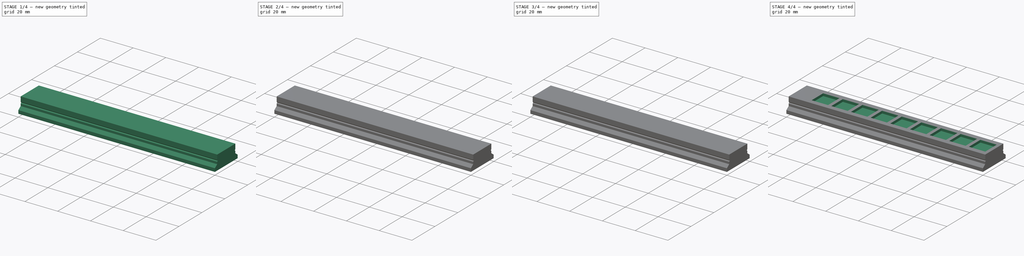
[diagram: build sequence overview — one tinted view per stage of 4, left to right]
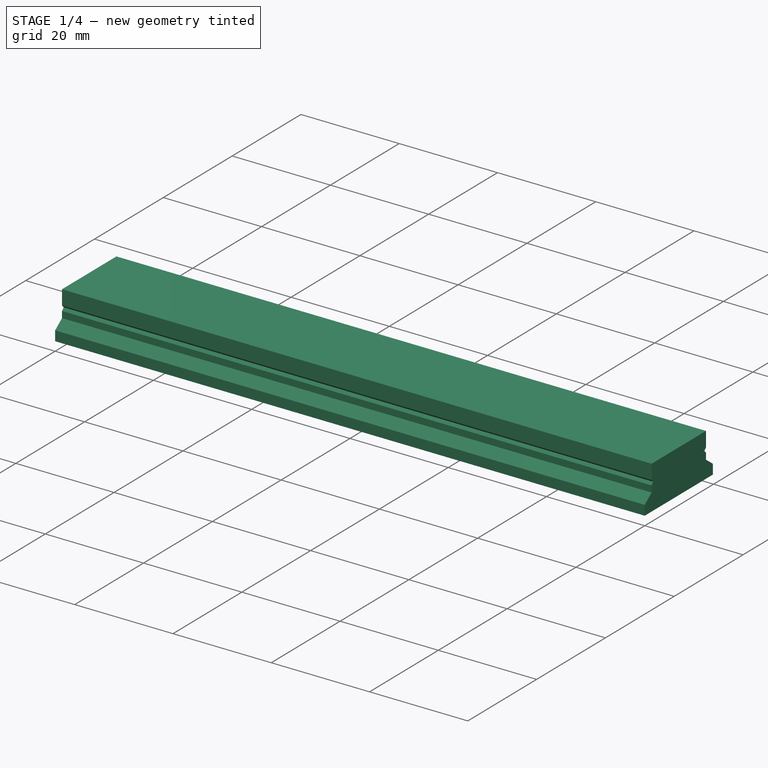
[diagram: stage 1 of 4 — iso view after this stage's code; geometry added in this stage tinted green]
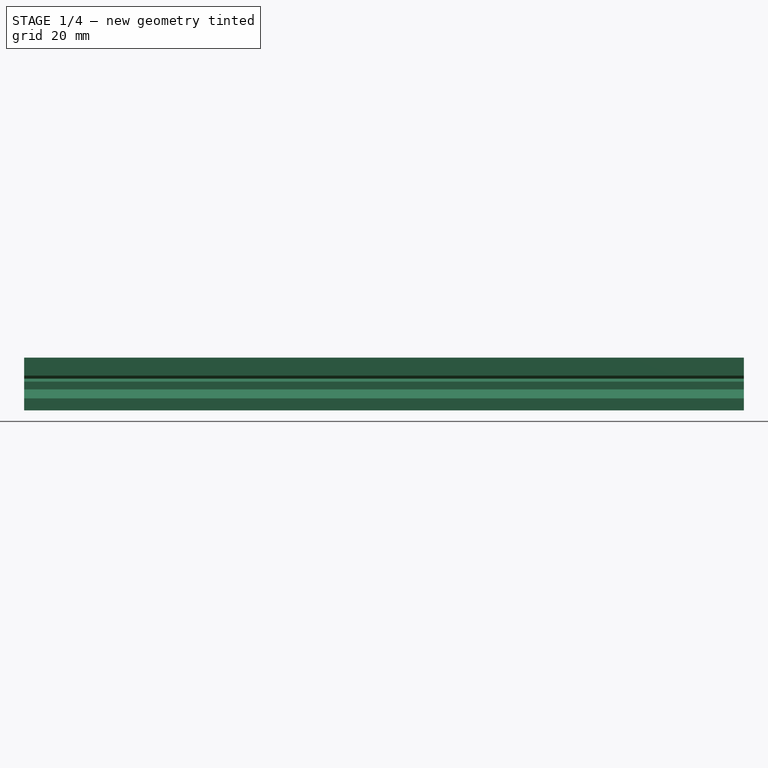
[diagram: stage 1 of 4 — front view after this stage's code; geometry added in this stage tinted green]
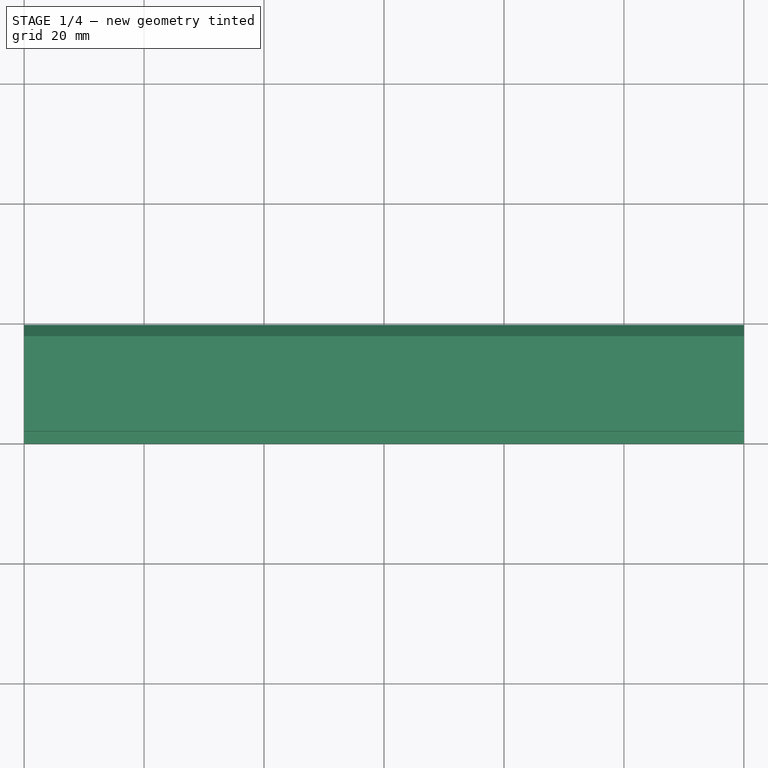
[diagram: stage 1 of 4 — top view after this stage's code; geometry added in this stage tinted green]
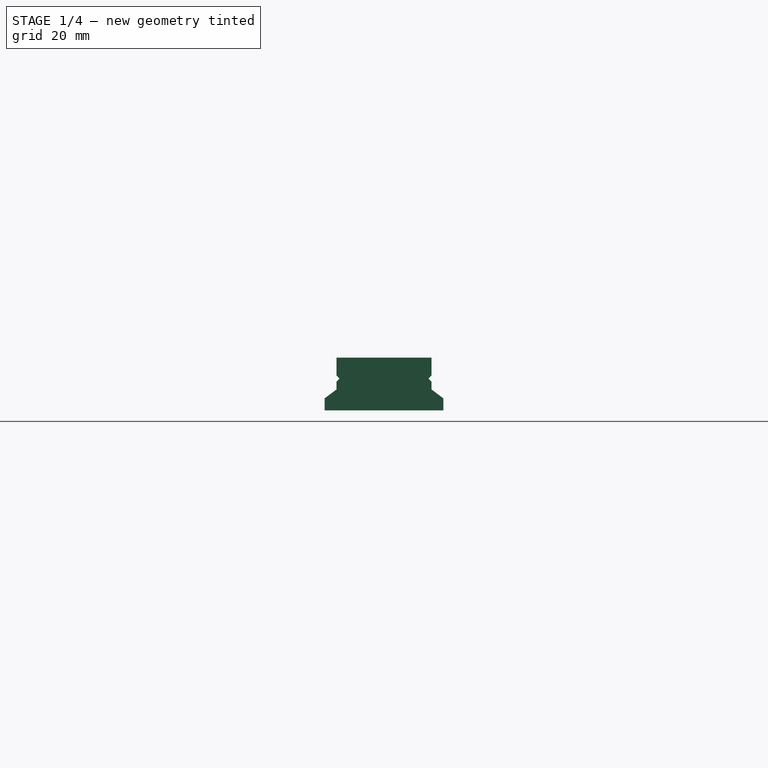
[diagram: stage 1 of 4 — right view after this stage's code; geometry added in this stage tinted green]
FCSTD DOCUMENT  (FreeCAD 1.0R39109 (Git))
Label: Menlu_13x13
License: All rights reserved
LicenseURL: https://en.wikipedia.org/wiki/All_rights_reserved
objects: Sketcher::SketchObject×5, PartDesign::Pocket×4, PartDesign::LinearPattern×3, PartDesign::Pad×1, PartDesign::Mirrored×1, PartDesign::Body×1
note: 34 computed .brp shape members not serialized (recipe doc carries the construction recipe); baked Part::Feature solids carry a one-line shape summary decoded from their .brp

FEATURE [Sketcher::SketchObject] Sketch
  ArcFitTolerance = 1e-06
  AttachmentSupport = -> [YZ_Plane]
  FullyConstrained = true
  MakeInternals = false
  MapMode = 5
  Placement = pos=(0,0,0) rot=(0.57735,0.57735,0.57735;2.0944rad)
  sketch-geometry (9):
    g0: LineSegment StartX=0 StartY=0 StartZ=0 EndX=0 EndY=2 EndZ=0
    g1: LineSegment StartX=0 StartY=2 StartZ=0 EndX=1.99057 EndY=3.5 EndZ=0
    g2: LineSegment StartX=1.99057 StartY=3.5 StartZ=0 EndX=1.99057 EndY=4.8 EndZ=0
    g3: LineSegment StartX=1.99057 StartY=4.8 StartZ=0 EndX=2.49057 EndY=5.3 EndZ=0
    g4: LineSegment StartX=2.49057 StartY=5.3 StartZ=0 EndX=1.99057 EndY=5.8 EndZ=0
    g5: LineSegment StartX=1.99057 StartY=5.8 StartZ=0 EndX=1.99057 EndY=8.8 EndZ=0
    g6: LineSegment StartX=1.99057 StartY=8.8 StartZ=0 EndX=9.9 EndY=8.8 EndZ=0
    g7: LineSegment StartX=0 StartY=0 StartZ=0 EndX=9.9 EndY=0 EndZ=0
    g8: LineSegment StartX=9.9 StartY=8.8 StartZ=0 EndX=9.9 EndY=0 EndZ=0
  constraints (25):
    c: Coincident(g-1,g0)
    c: PointOnObject(g0,g-2)
    c: Coincident(g0,g1)
    c: Coincident(g1,g2)
    c: Vertical(g2)
    c: Coincident(g2,g3)
    c: Coincident(g3,g4)
    c: Coincident(g4,g5)
    c: Coincident(g5,g6)
    c: Horizontal(g6)
    c: Coincident(g0,g7)
    c: PointOnObject(g7,g-1)
    c: Vertical(g8)
    c: Coincident(g8,g7)
    c: Distance(g0,g0) = 2
    c: DistanceY(g0,g1) = 1.5
    c: DistanceY(g2,g2) = 1.3
    c: DistanceY(g2,g3) = 0.5
    c: DistanceX(g2,g3) = 0.5
    c: DistanceY(g3,g4) = 0.5
    c: Tangent(g5,g2)
    c: DistanceY(g5,g5) = 3
    c: Angle(g1,g2) = 0.925025
    c: DistanceX(g7,g7) = 9.9
    c: Coincident(g8,g6)
FEATURE [PartDesign::Pad] Pad
  Direction = (1,0,0)
  Length = 120
  Length2 = 10
  Placement = pos=(0,0,0) rot=(1,1,1;2.0944rad)
  Profile = -> Sketch
  ReferenceAxis = -> Sketch [N_Axis]
  Refine = true
  Suppressed = false
  Type = 0
FEATURE [PartDesign::Mirrored] Mirrored
  BaseFeature = -> Pad
  MirrorPlane = -> Pad [Face8]
  Placement = pos=(0,0,0) rot=(1,1,1;2.0944rad)
  Refine = true
  Suppressed = false
  TransformMode = 1
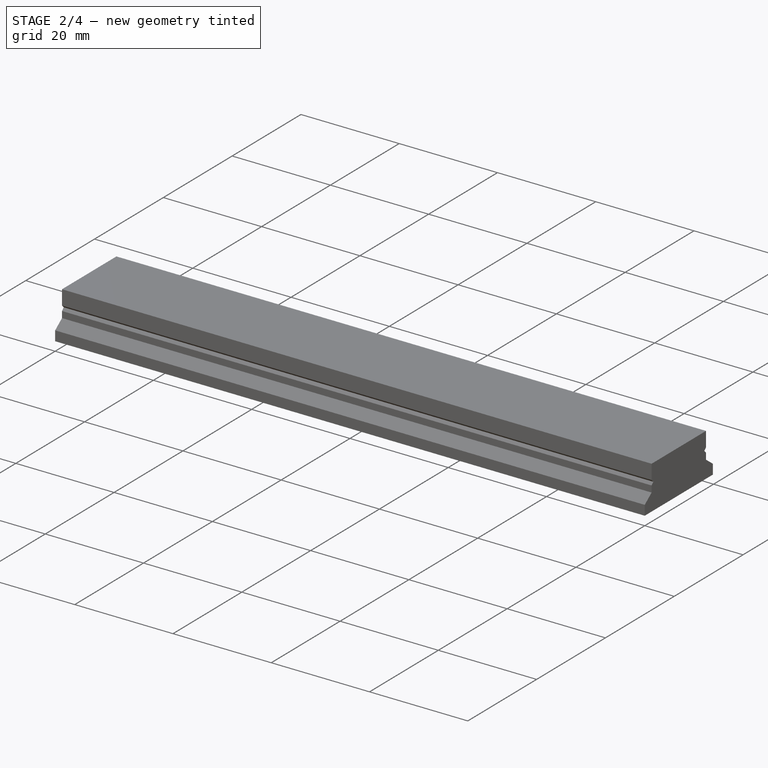
[diagram: stage 2 of 4 — iso view after this stage's code; geometry added in this stage tinted green]
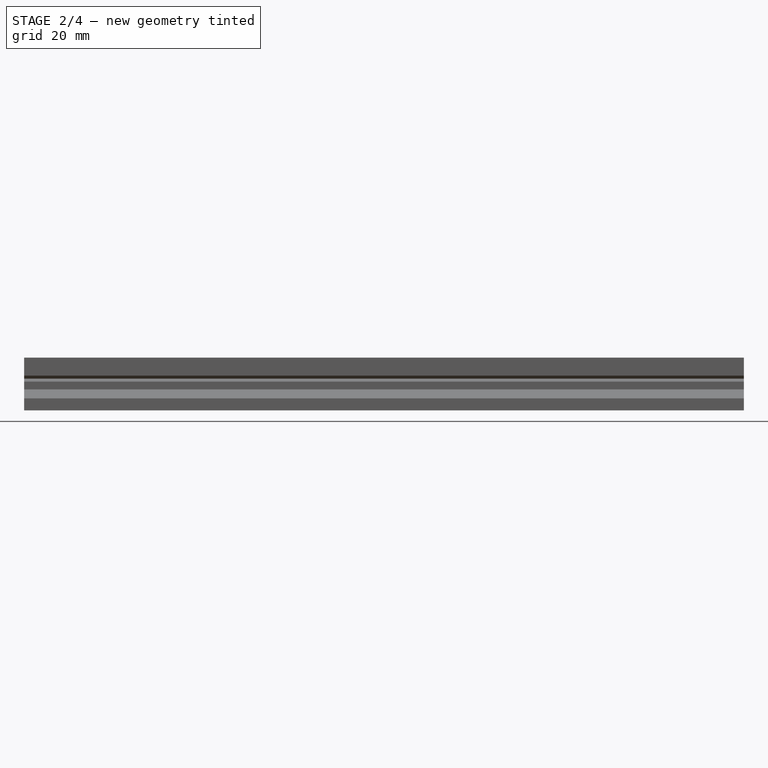
[diagram: stage 2 of 4 — front view after this stage's code; geometry added in this stage tinted green]
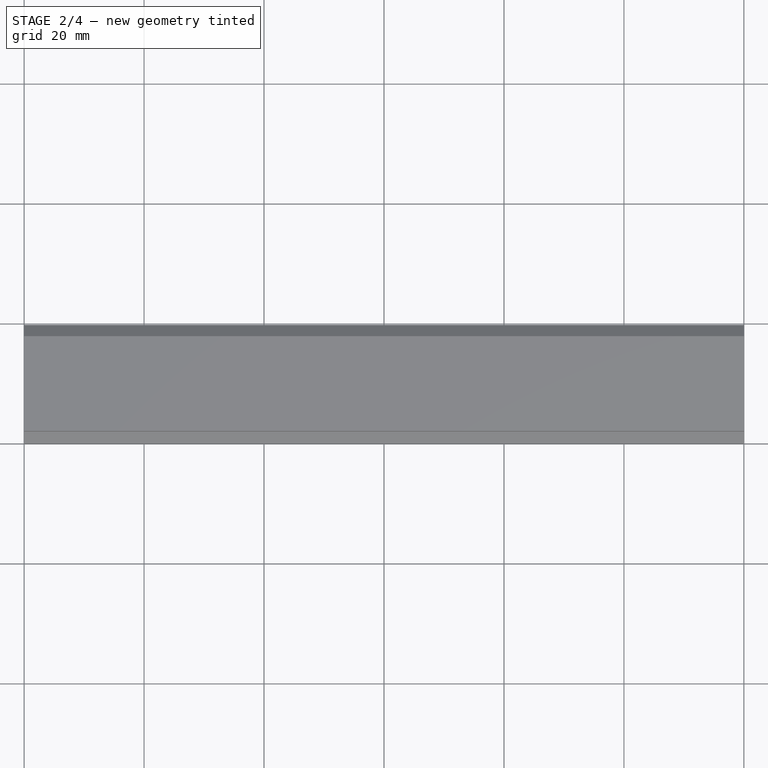
[diagram: stage 2 of 4 — top view after this stage's code; geometry added in this stage tinted green]
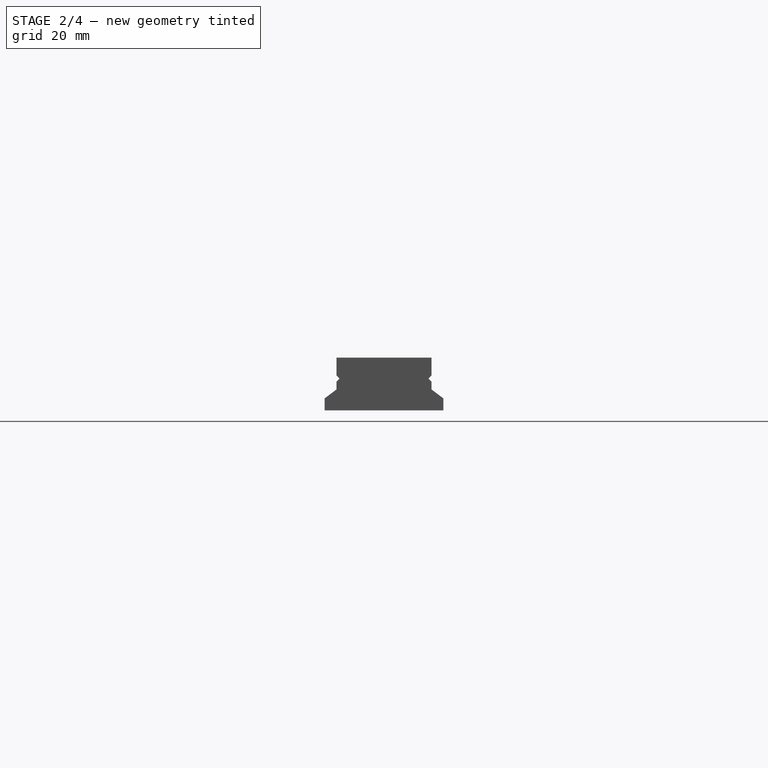
[diagram: stage 2 of 4 — right view after this stage's code; geometry added in this stage tinted green]
FEATURE [Sketcher::SketchObject] Sketch001
  ArcFitTolerance = 1e-06
  AttachmentSupport = -> [Mirrored]
  ExternalGeometry = -> [Mirrored]
  FullyConstrained = true
  MakeInternals = false
  MapMode = 5
  Placement = pos=(0,0,0) rot=(0.707107,0.707107,0;3.14159rad)
  sketch-geometry (32):
    g0: LineSegment StartX=1 StartY=24.25 StartZ=0 EndX=1 EndY=11.75 EndZ=0
    g1: LineSegment StartX=1 StartY=11.75 StartZ=0 EndX=3.8 EndY=11.75 EndZ=0
    g2: LineSegment StartX=3.8 StartY=11.75 StartZ=0 EndX=3.8 EndY=24.25 EndZ=0
    g3: LineSegment StartX=3.8 StartY=24.25 StartZ=0 EndX=1 EndY=24.25 EndZ=0
    g4: LineSegment StartX=6 StartY=24.25 StartZ=0 EndX=6 EndY=11.75 EndZ=0
    g5: LineSegment StartX=6 StartY=11.75 StartZ=0 EndX=8.8 EndY=11.75 EndZ=0
    g6: LineSegment StartX=8.8 StartY=11.75 StartZ=0 EndX=8.8 EndY=24.25 EndZ=0
    g7: LineSegment StartX=8.8 StartY=24.25 StartZ=0 EndX=6 EndY=24.25 EndZ=0
    g8: LineSegment StartX=11 StartY=11.75 StartZ=0 EndX=13.8 EndY=11.75 EndZ=0
    g9: LineSegment StartX=13.8 StartY=11.75 StartZ=0 EndX=13.8 EndY=24.25 EndZ=0
    g10: LineSegment StartX=13.8 StartY=24.25 StartZ=0 EndX=11 EndY=24.25 EndZ=0
    g11: LineSegment StartX=11 StartY=24.25 StartZ=0 EndX=11 EndY=11.75 EndZ=0
    g12: LineSegment StartX=1 StartY=106.25 StartZ=0 EndX=1 EndY=93.75 EndZ=0
    g13: LineSegment StartX=1 StartY=93.75 StartZ=0 EndX=3.75 EndY=93.75 EndZ=0
    g14: LineSegment StartX=3.75 StartY=93.75 StartZ=0 EndX=3.75 EndY=106.25 EndZ=0
    g15: LineSegment StartX=3.75 StartY=106.25 StartZ=0 EndX=1 EndY=106.25 EndZ=0
    g16: LineSegment StartX=6 StartY=106.25 StartZ=0 EndX=6 EndY=93.75 EndZ=0
    g17: LineSegment StartX=6 StartY=93.75 StartZ=0 EndX=8.8 EndY=93.75 EndZ=0
    g18: LineSegment StartX=8.8 StartY=93.75 StartZ=0 EndX=8.8 EndY=106.25 EndZ=0
    g19: LineSegment StartX=8.8 StartY=106.25 StartZ=0 EndX=6 EndY=106.25 EndZ=0
    g20: LineSegment StartX=11 StartY=93.75 StartZ=0 EndX=13.8 EndY=93.75 EndZ=0
    g21: LineSegment StartX=13.8 StartY=93.75 StartZ=0 EndX=13.8 EndY=106.25 EndZ=0
    g22: LineSegment StartX=13.8 StartY=106.25 StartZ=0 EndX=11 EndY=106.25 EndZ=0
    g23: LineSegment StartX=11 StartY=106.25 StartZ=0 EndX=11 EndY=93.75 EndZ=0
    g24: LineSegment StartX=16 StartY=11.75 StartZ=0 EndX=18.8 EndY=11.75 EndZ=0
    g25: LineSegment StartX=18.8 StartY=11.75 StartZ=0 EndX=18.8 EndY=24.25 EndZ=0
    g26: LineSegment StartX=18.8 StartY=24.25 StartZ=0 EndX=16 EndY=24.25 EndZ=0
    g27: LineSegment StartX=16 StartY=24.25 StartZ=0 EndX=16 EndY=11.75 EndZ=0
    g28: LineSegment StartX=16 StartY=93.75 StartZ=0 EndX=18.8 EndY=93.75 EndZ=0
    g29: LineSegment StartX=18.8 StartY=93.75 StartZ=0 EndX=18.8 EndY=106.25 EndZ=0
    g30: LineSegment StartX=18.8 StartY=106.25 StartZ=0 EndX=16 EndY=106.25 EndZ=0
    g31: LineSegment StartX=16 StartY=106.25 StartZ=0 EndX=16 EndY=93.75 EndZ=0
  constraints (81):
    c: Coincident(g0,g1)
    c: Coincident(g1,g2)
    c: Coincident(g2,g3)
    c: Coincident(g3,g0)
    c: Vertical(g0)
    c: Vertical(g2)
    c: Horizontal(g1)
    c: Horizontal(g3)
    c: Distance(g3,g3) = 2.8
    c: Distance(g0,g0) = 12.5
    c: Distance(g-1,g1) = 11.75
    c: Distance(g-2,g0) = 1
    c: Coincident(g4,g5)
    c: Coincident(g5,g6)
    c: Coincident(g6,g7)
    c: Coincident(g7,g4)
    c: Vertical(g4)
    c: Vertical(g6)
    c: Tangent(g7,g3)
    c: Tangent(g5,g1)
    c: Distance(g7,g7) = 2.8
    c: Distance(g4,g2) = 2.2
    c: Coincident(g8,g9)
    c: Coincident(g9,g10)
    c: Coincident(g10,g11)
    c: Coincident(g11,g8)
    c: Vertical(g9)
    c: Vertical(g11)
    c: Tangent(g10,g7)
    c: Tangent(g8,g5)
    c: DistanceX(g10,g10) = 2.8
    c: Distance(g11,g6) = 2.2
    c: Coincident(g12,g13)
    c: Coincident(g13,g14)
    c: Coincident(g14,g15)
    c: Coincident(g15,g12)
    c: Vertical(g14)
    c: Horizontal(g13)
    c: Horizontal(g15)
    c: Distance(g15,g15) = 2.75
    c: Distance(g12,g12) = 12.5
    c: Coincident(g16,g17)
    c: Coincident(g17,g18)
    c: Coincident(g18,g19)
    c: Coincident(g19,g16)
    c: Vertical(g16)
    c: Vertical(g18)
    c: Tangent(g19,g15)
    c: Tangent(g17,g13)
    c: Distance(g19,g19) = 2.8
    c: Distance(g16,g14) = 2.25
    c: Coincident(g20,g21)
    c: Coincident(g21,g22)
    c: Coincident(g22,g23)
    c: Coincident(g23,g20)
    c: Vertical(g21)
    c: Vertical(g23)
    c: Tangent(g22,g19)
    c: Tangent(g20,g17)
    c: DistanceX(g22,g22) = 2.8
    c: Distance(g23,g18) = 2.2
    c: Coincident(g24,g25)
    c: Coincident(g25,g26)
    c: Coincident(g26,g27)
    c: Coincident(g27,g24)
    c: Vertical(g25)
    c: Vertical(g27)
    c: Tangent(g24,g8)
    c: Tangent(g26,g10)
    c: DistanceX(g26,g26) = 2.8
    c: Distance(g9,g27) = 2.2
    c: Tangent(g12,g0)
    c: Distance(g13,g3) = 69.5
    c: Coincident(g28,g29)
    c: Coincident(g29,g30)
    c: Coincident(g30,g31)
    c: Coincident(g31,g28)
    c: Tangent(g28,g20)
    c: Tangent(g30,g22)
    c: Tangent(g31,g27)
    c: Tangent(g29,g25)
FEATURE [PartDesign::Pocket] Pocket
  BaseFeature = -> Mirrored
  Direction = (0,0,1)
  Length = 1.3
  Length2 = 5
  Placement = pos=(0,0,0) rot=(1,1,1;2.0944rad)
  Profile = -> Sketch001
  ReferenceAxis = -> Sketch001 [N_Axis]
  Refine = true
  Suppressed = false
  Type = 0
FEATURE [Sketcher::SketchObject] Sketch002
  ArcFitTolerance = 1e-06
  AttachmentSupport = -> [Pocket]
  ExternalGeometry = -> [Pocket]
  FullyConstrained = true
  MakeInternals = false
  MapMode = 5
  Placement = pos=(-3.5e-15,0,0) rot=(0.57735,0.57735,-0.57735;4.18879rad)
  sketch-geometry (8):
    g0: LineSegment StartX=18.2 StartY=1.21e-14 StartZ=0 EndX=18.9 EndY=-1 EndZ=0
    g1: LineSegment StartX=18.9 StartY=-1 StartZ=0 EndX=18.6 EndY=-1.3 EndZ=0
    g2: LineSegment StartX=18.6 StartY=-1.3 StartZ=0 EndX=16.2 EndY=-1.3 EndZ=0
    g3: LineSegment StartX=16.2 StartY=-1.3 StartZ=0 EndX=15.9 EndY=-1 EndZ=0
    g4: LineSegment StartX=15.9 StartY=-1 StartZ=0 EndX=16.6 EndY=1.11e-14 EndZ=0
    g5: LineSegment StartX=16.6 StartY=1.11e-14 StartZ=0 EndX=18.2 EndY=1.21e-14 EndZ=0
    g6: GeomPoint X=17.4 Y=-1.3 Z=0
    g7: GeomPoint X=17.4 Y=1.16e-14 Z=0
  constraints (19):
    c: Coincident(g0,g1)
    c: Coincident(g1,g2)
    c: Horizontal(g2)
    c: Coincident(g2,g3)
    c: Coincident(g3,g4)
    c: Coincident(g4,g5)
    c: Coincident(g5,g0)
    c: DistanceX(g5,g5) = 1.6
    c: Distance(g5,g2) = 1.3
    c: DistanceX(g3,g4) = 0.7
    c: DistanceY(g3,g4) = 1
    c: DistanceX(g2,g2) = 2.4
    c: Symmetric(g2,g2,g6)
    c: Symmetric(g5,g5,g7)
    c: Vertical(g6,g7)
    c: Horizontal(g0,g3)
    c: DistanceX(g0,g0) = 0.7
    c: Tangent(g5,g-4)
    c: Distance(g7,g-3) = 2.4
FEATURE [PartDesign::Pocket] Pocket001
  BaseFeature = -> Pocket
  Direction = (1,0,0)
  Length = 5
  Length2 = 5
  Placement = pos=(0,0,0) rot=(1,1,1;2.0944rad)
  Profile = -> Sketch002
  ReferenceAxis = -> Sketch002 [N_Axis]
  Refine = true
  Suppressed = false
  Type = 2
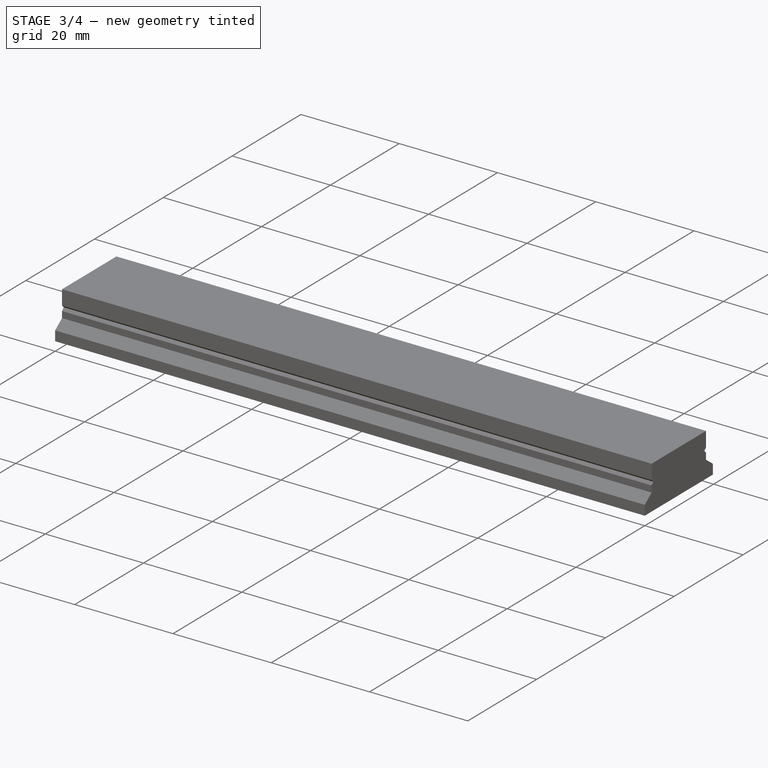
[diagram: stage 3 of 4 — iso view after this stage's code; geometry added in this stage tinted green]
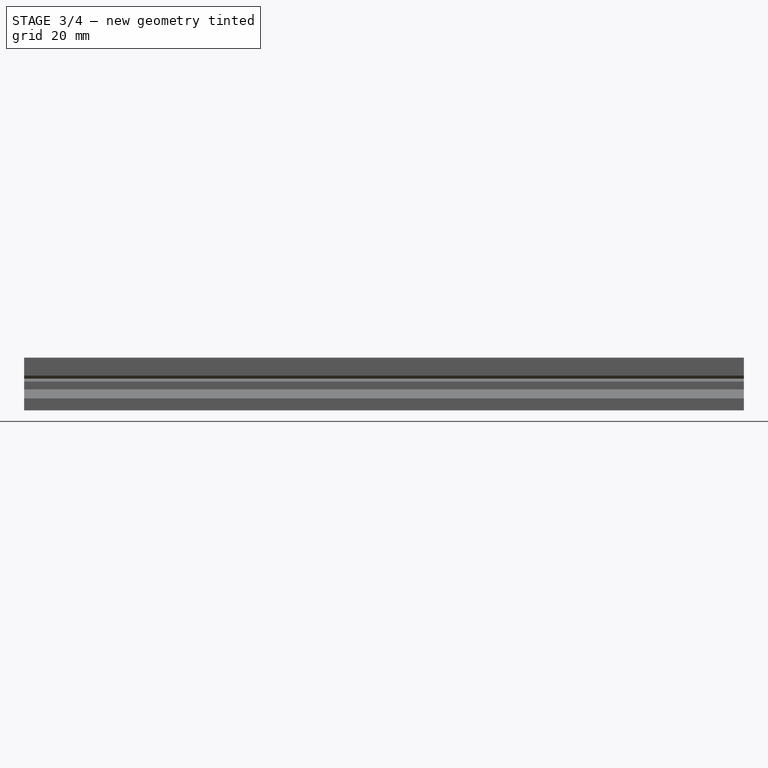
[diagram: stage 3 of 4 — front view after this stage's code; geometry added in this stage tinted green]
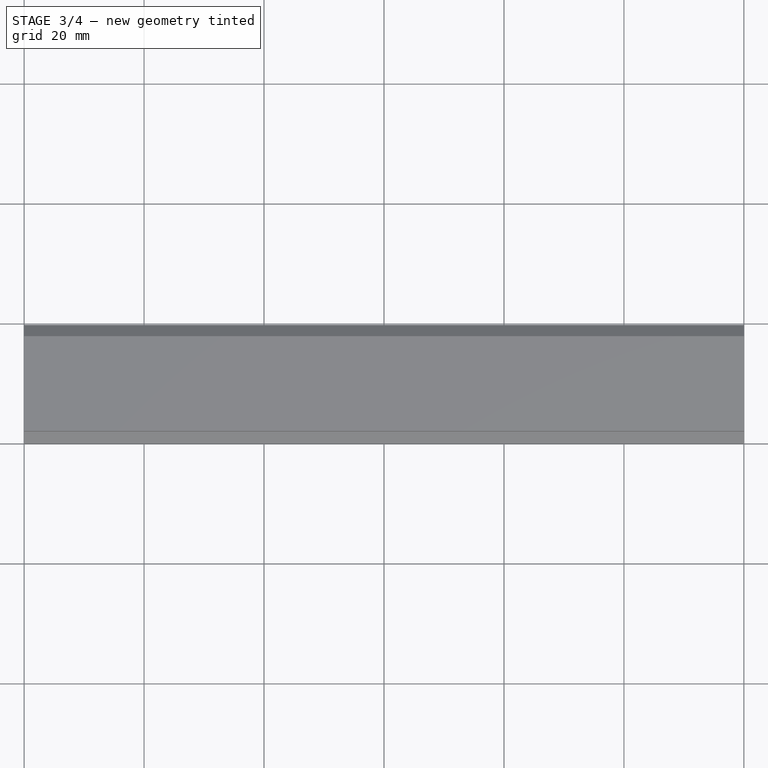
[diagram: stage 3 of 4 — top view after this stage's code; geometry added in this stage tinted green]
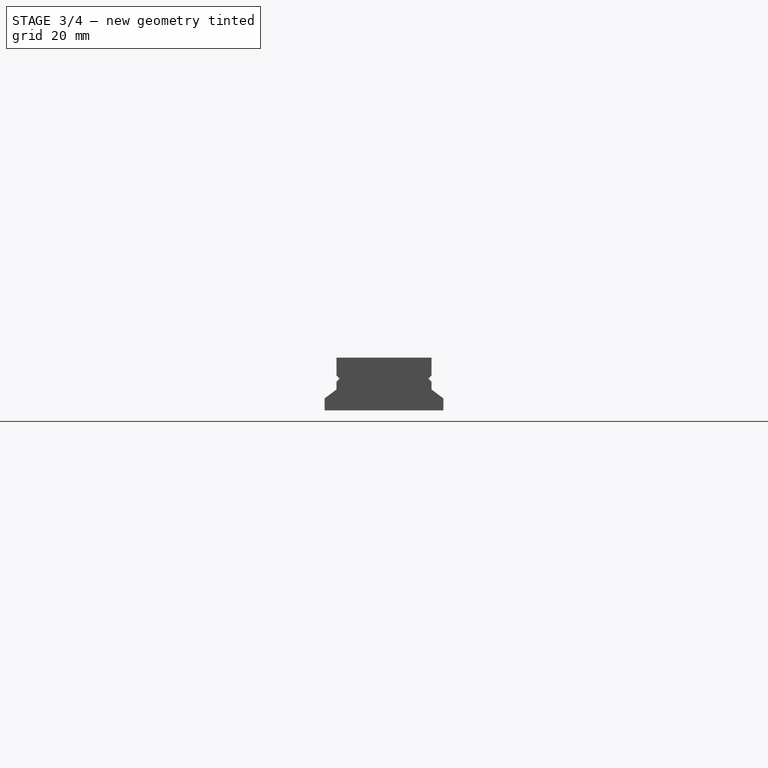
[diagram: stage 3 of 4 — right view after this stage's code; geometry added in this stage tinted green]
FEATURE [Sketcher::SketchObject] Sketch010
  ArcFitTolerance = 1e-06
  AttachmentSupport = -> [Pocket001]
  ExternalGeometry = -> [Sketch002]
  FullyConstrained = true
  MakeInternals = false
  MapMode = 5
  Placement = pos=(93.75,-5.174e-13,4.16e-14) rot=(0.57735,0.57735,0.57735;2.0944rad)
  sketch-geometry (6):
    g0: LineSegment StartX=15.9 StartY=1 StartZ=0 EndX=16.6 EndY=0 EndZ=0
    g1: LineSegment StartX=18.2 StartY=0 StartZ=0 EndX=18.9 EndY=1 EndZ=0
    g2: LineSegment StartX=18.6 StartY=1.3 StartZ=0 EndX=16.2 EndY=1.3 EndZ=0
    g3: LineSegment StartX=15.9 StartY=1 StartZ=0 EndX=16.2 EndY=1.3 EndZ=0
    g4: LineSegment StartX=18.6 StartY=1.3 StartZ=0 EndX=18.9 EndY=1 EndZ=0
    g5: LineSegment StartX=18.2 StartY=0 StartZ=0 EndX=16.6 EndY=0 EndZ=0
  constraints (12):
    c: Coincident(g0,g-8)
    c: Coincident(g0,g-4)
    c: Coincident(g1,g-5)
    c: Coincident(g1,g-6)
    c: Coincident(g2,g-7)
    c: Coincident(g2,g-8)
    c: Coincident(g3,g0)
    c: Coincident(g3,g-8)
    c: Coincident(g4,g2)
    c: Coincident(g4,g1)
    c: Coincident(g5,g-5)
    c: Coincident(g5,g-4)
FEATURE [PartDesign::Pocket] Pocket004
  BaseFeature = -> Pocket001
  Direction = (-1,5.4e-15,1e-16)
  Length = 14
  Length2 = 5
  Placement = pos=(0,0,0) rot=(1,1,1;2.0944rad)
  Profile = -> Sketch010
  ReferenceAxis = -> Sketch010 [N_Axis]
  Refine = true
  Suppressed = false
  Type = 0
FEATURE [PartDesign::LinearPattern] LinearPattern001
  BaseFeature = -> Pocket004
  Direction = -> Sketch010 [H_Axis]
  Length = 15
  Mode = 0
  Occurrences = 4
  Offset = 5
  Originals = -> [Pocket004]
  Placement = pos=(0,0,0) rot=(1,1,1;2.0944rad)
  Refine = true
  Reversed = true
  Suppressed = false
  TransformMode = 0
FEATURE [PartDesign::LinearPattern] LinearPattern
  BaseFeature = -> LinearPattern001
  Direction = -> Y_Axis
  Length = 15
  Mode = 0
  Occurrences = 4
  Offset = 5
  Originals = -> [Pocket001]
  Placement = pos=(0,0,0) rot=(1,1,1;2.0944rad)
  Refine = true
  Reversed = true
  Suppressed = false
  TransformMode = 0
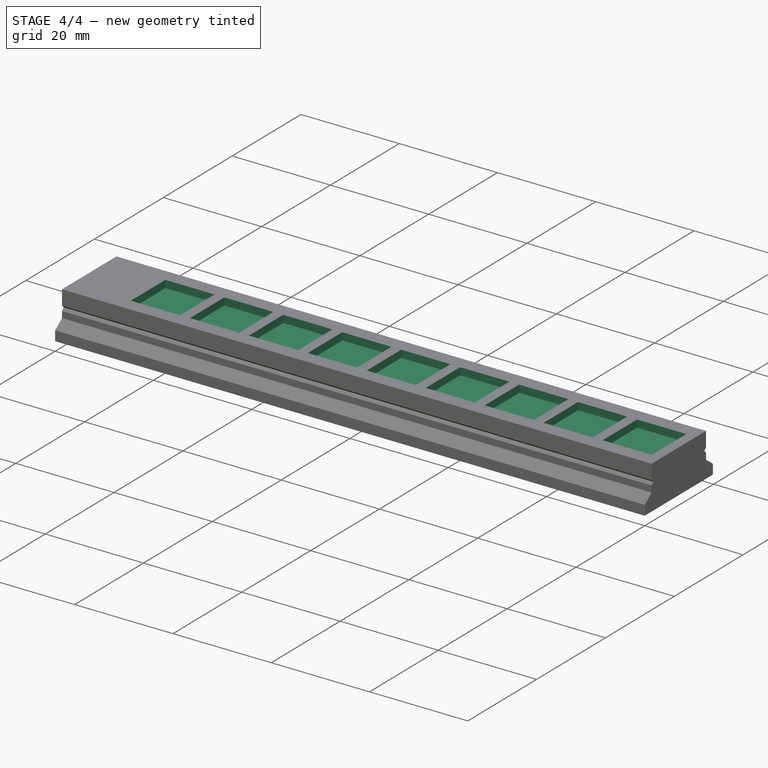
[diagram: stage 4 of 4 — iso view after this stage's code; geometry added in this stage tinted green]
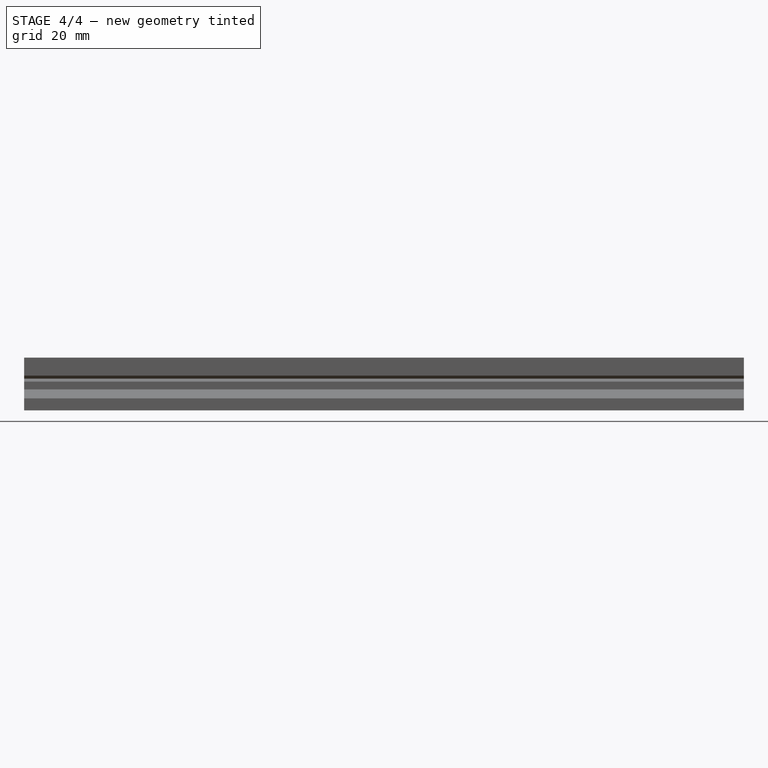
[diagram: stage 4 of 4 — front view after this stage's code; geometry added in this stage tinted green]
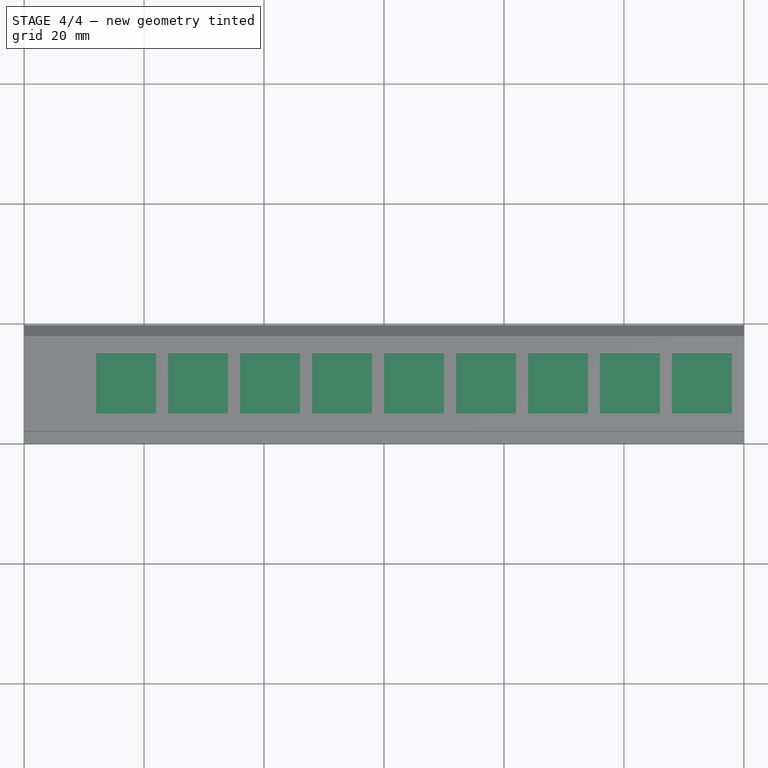
[diagram: stage 4 of 4 — top view after this stage's code; geometry added in this stage tinted green]
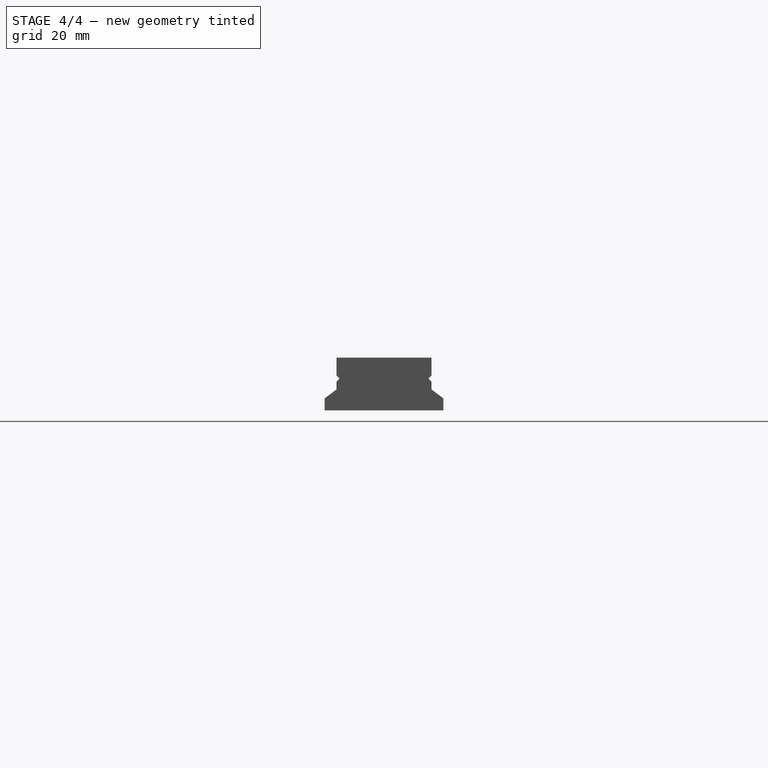
[diagram: stage 4 of 4 — right view after this stage's code; geometry added in this stage tinted green]
FEATURE [Sketcher::SketchObject] Sketch011
  ArcFitTolerance = 1e-06
  AttachmentSupport = -> [LinearPattern]
  ExternalGeometry = -> [LinearPattern]
  FullyConstrained = true
  MakeInternals = false
  MapMode = 5
  Placement = pos=(-9.8e-15,6.9e-15,8.8) rot=(0,0,-1;1.5708rad)
  sketch-geometry (6):
    g0: LineSegment [constr] StartX=-9.9 StartY=120 StartZ=0 EndX=-9.9 EndY=0 EndZ=0
    g1: LineSegment StartX=-14.9 StartY=108 StartZ=0 EndX=-4.9 EndY=108 EndZ=0
    g2: LineSegment StartX=-4.9 StartY=108 StartZ=0 EndX=-4.9 EndY=118 EndZ=0
    g3: LineSegment StartX=-4.9 StartY=118 StartZ=0 EndX=-14.9 EndY=118 EndZ=0
    g4: LineSegment StartX=-14.9 StartY=118 StartZ=0 EndX=-14.9 EndY=108 EndZ=0
    g5: GeomPoint [constr] X=-9.9 Y=113 Z=0
  constraints (15):
    c: Symmetric(g-6,g-6,g0)
    c: Symmetric(g-3,g-3,g0)
    c: Coincident(g1,g2)
    c: Coincident(g2,g3)
    c: Coincident(g3,g4)
    c: Coincident(g4,g1)
    c: Horizontal(g1)
    c: Horizontal(g3)
    c: Vertical(g2)
    c: Vertical(g4)
    c: Symmetric(g3,g1,g5)
    c: Distance(g2,g4) = 10
    c: PointOnObject(g5,g0)
    c: DistanceY(g4,g4) = 10
    c: DistanceY(g5,g0) = 7
FEATURE [PartDesign::Pocket] Pocket005
  BaseFeature = -> LinearPattern
  Direction = (1.1e-15,0,-1)
  Length = 1.5
  Length2 = 5
  Placement = pos=(0,0,0) rot=(1,1,1;2.0944rad)
  Profile = -> Sketch011
  ReferenceAxis = -> Sketch011 [N_Axis]
  Refine = true
  Suppressed = false
  Type = 0
FEATURE [PartDesign::LinearPattern] LinearPattern002
  BaseFeature = -> Pocket005
  Direction = -> X_Axis
  Length = 96
  Mode = 0
  Occurrences = 9
  Offset = 12
  Originals = -> [Pocket005]
  Placement = pos=(0,0,0) rot=(1,1,1;2.0944rad)
  Refine = true
  Reversed = true
  Suppressed = false
  TransformMode = 0
FEATURE [PartDesign::Body] Body
  AllowCompound = false
  Group = -> [Sketch,Pad,Mirrored,Sketch001,Pocket,Sketch002,Pocket001,Sketch010,Pocket004,LinearPattern001,LinearPattern,Sketch011,Pocket005,LinearPattern002]
  Origin = -> Origin
  Tip = -> LinearPattern002
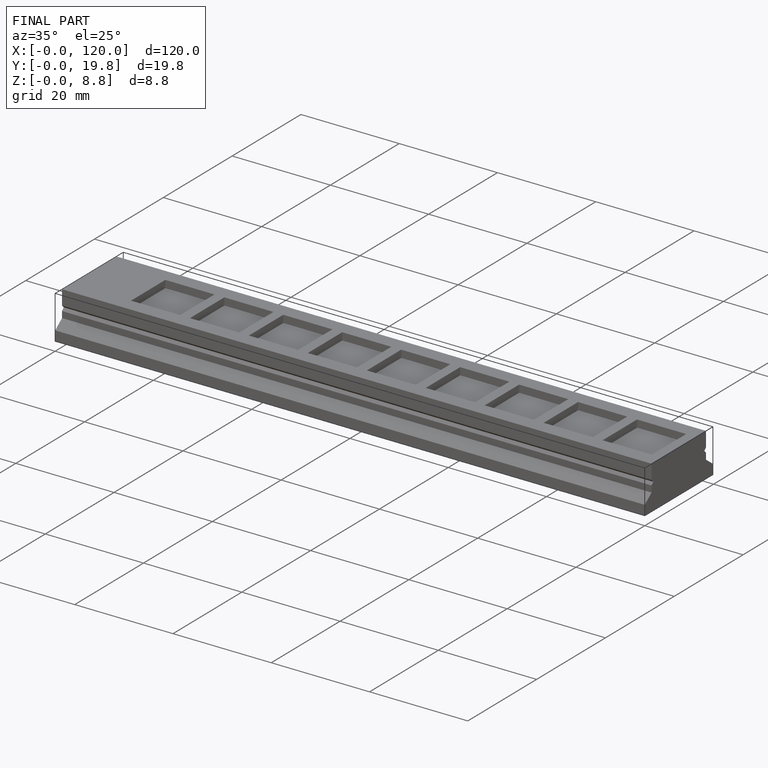
[diagram: finished part — iso view with bounding-box wireframe]
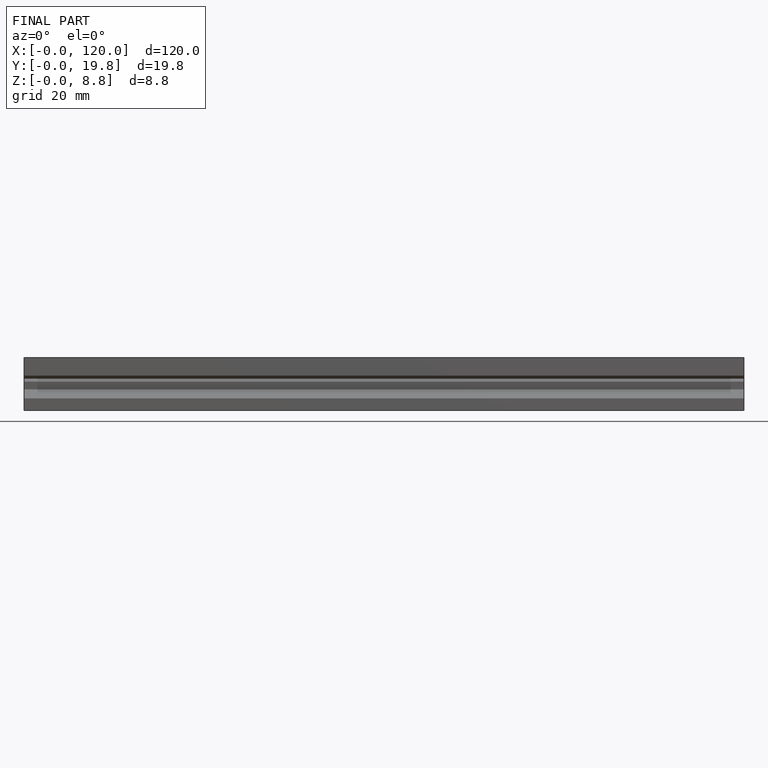
[diagram: finished part — front view with bounding-box wireframe]
